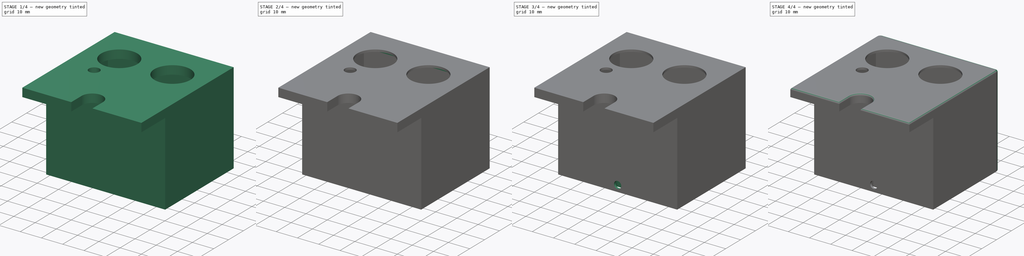
[diagram: build sequence overview — one tinted view per stage of 4, left to right]
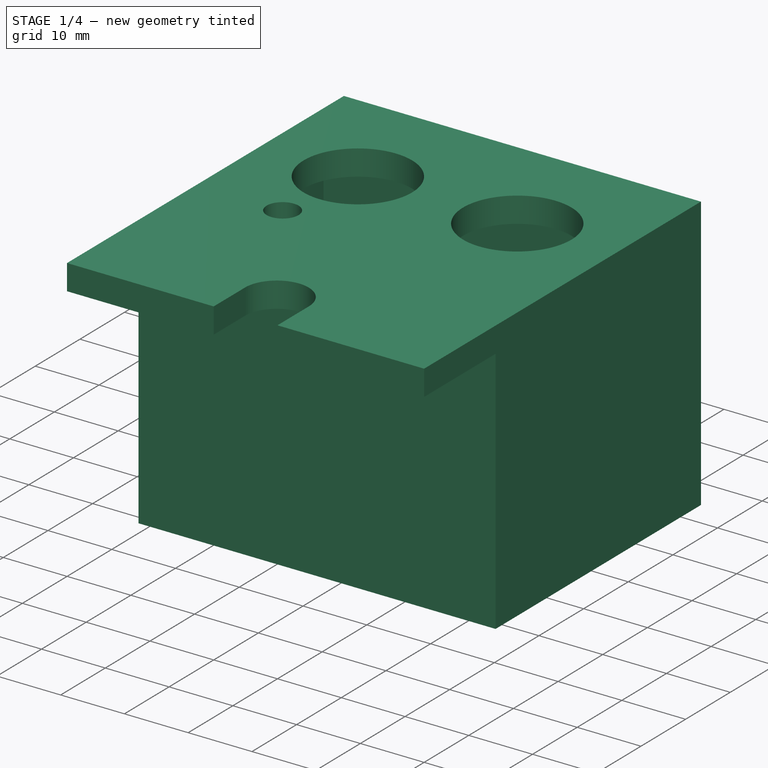
[diagram: stage 1 of 4 — iso view after this stage's code; geometry added in this stage tinted green]
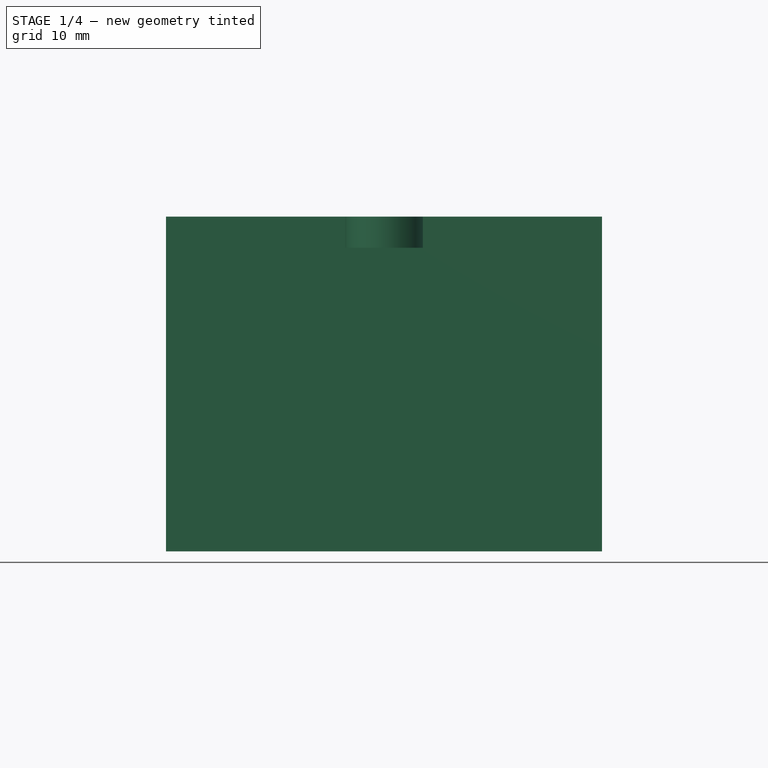
[diagram: stage 1 of 4 — front view after this stage's code; geometry added in this stage tinted green]
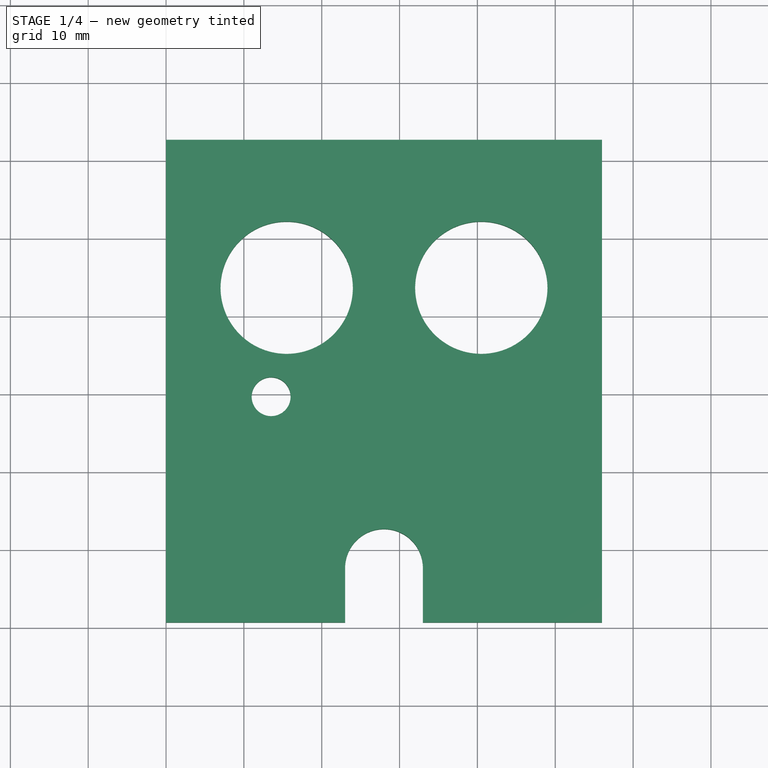
[diagram: stage 1 of 4 — top view after this stage's code; geometry added in this stage tinted green]
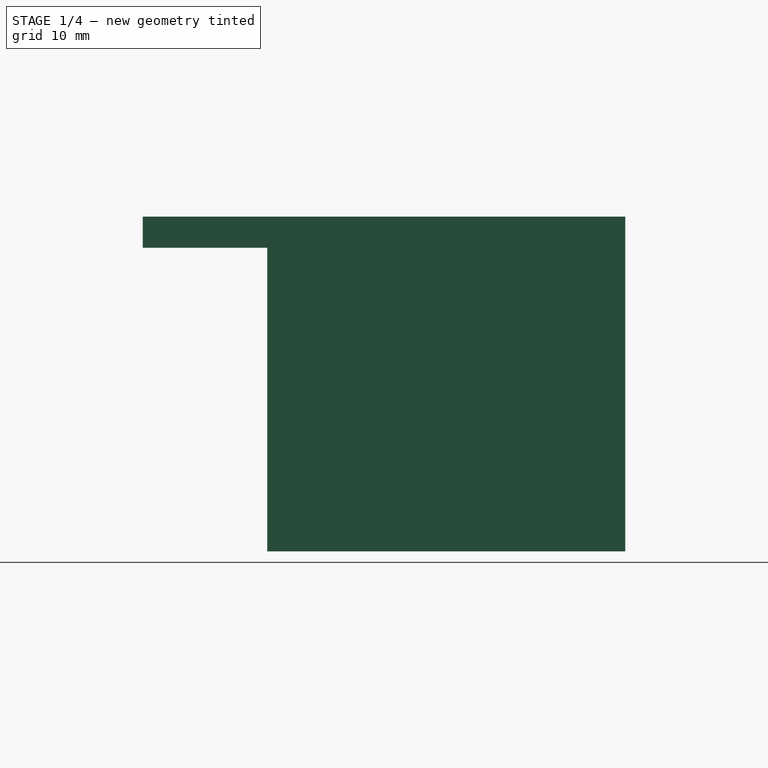
[diagram: stage 1 of 4 — right view after this stage's code; geometry added in this stage tinted green]
FCSTD DOCUMENT  (FreeCAD 0.17R13541 (Git))
Label: Head
License: All rights reserved
LicenseURL: http://en.wikipedia.org/wiki/All_rights_reserved
objects: Sketcher::SketchObject×7, PartDesign::Pocket×6, PartDesign::Fillet×2, PartDesign::Pad×1, PartDesign::Body×1
note: 24 computed .brp shape members not serialized (recipe doc carries the construction recipe); baked Part::Feature solids carry a one-line shape summary decoded from their .brp

FEATURE [Sketcher::SketchObject] Sketch
  MapMode = 5
  Support = -> [XY_Plane]
  sketch-geometry (11):
    g0: LineSegment StartX=56 StartY=0 StartZ=0 EndX=56 EndY=62 EndZ=0
    g1: LineSegment StartX=56 StartY=62 StartZ=0 EndX=0 EndY=62 EndZ=0
    g2: LineSegment StartX=0 StartY=62 StartZ=0 EndX=0 EndY=0 EndZ=0
    g3: LineSegment StartX=23 StartY=0 StartZ=0 EndX=23 EndY=7 EndZ=0
    g4: LineSegment StartX=33 StartY=0 StartZ=0 EndX=33 EndY=7 EndZ=0
    g5: ArcOfCircle CenterX=28 CenterY=7 CenterZ=0 NormalX=0 NormalY=0 NormalZ=1 AngleXU=0 Radius=5 StartAngle=0 EndAngle=3.14159
    g6: LineSegment StartX=0 StartY=0 StartZ=0 EndX=23 EndY=0 EndZ=0
    g7: LineSegment StartX=33 StartY=0 StartZ=0 EndX=56 EndY=0 EndZ=0
    g8: Circle CenterX=15.5 CenterY=43 CenterZ=0 NormalX=0 NormalY=0 NormalZ=1 AngleXU=0 Radius=8.5
    g9: Circle CenterX=40.5 CenterY=43 CenterZ=0 NormalX=0 NormalY=0 NormalZ=1 AngleXU=0 Radius=8.5
    g10: Circle CenterX=13.5 CenterY=29 CenterZ=0 NormalX=0 NormalY=0 NormalZ=1 AngleXU=0 Radius=2.5
  constraints (33):
    c: Coincident(g0,g1)
    c: Coincident(g1,g2)
    c: Horizontal(g1)
    c: Vertical(g0)
    c: Vertical(g2)
    c: DistanceY(g0,g0) = 62
    c: DistanceX(g1,g1) = 56
    c: Vertical(g3)
    c: Vertical(g4)
    c: Coincident(g5,g3)
    c: Coincident(g5,g4)
    c: Coincident(g6,g-1)
    c: Coincident(g6,g3)
    c: Horizontal(g6)
    c: Coincident(g7,g4)
    c: Coincident(g7,g0)
    c: Horizontal(g7)
    c: Radius(g5) = 5
    c: DistanceY(g5,g3) = 0
    c: DistanceY(g5,g4) = 0
    c: DistanceY(g4,g4) = 7
    c: DistanceX(g6,g6) = 23
    c: PointOnObject(g4,g-1)
    c: Coincident(g-1,g2)
    c: Radius(g8) = 8.5
    c: Radius(g9) = 8.5
    c: DistanceX(g-1,g8) = 15.5
    c: DistanceX(g8,g9) = 25
    c: DistanceY(g8,g9) = 0
    c: DistanceY(g-1,g8) = 43
    c: Radius(g10) = 2.5
    c: DistanceX(g10,g8) = 2
    c: DistanceY(g10,g8) = 14
FEATURE [PartDesign::Pad] Pad  label="Base"
  Length = 43
  Length2 = 100
  Profile = -> Sketch
  Type = 0
FEATURE [Sketcher::SketchObject] Sketch002
  MapMode = 5
  Placement = pos=(0,0,0) rot=(0.57735,-0.57735,-0.57735;2.0944rad)
  sketch-geometry (4):
    g0: LineSegment StartX=-44 StartY=24 StartZ=0 EndX=-36 EndY=24 EndZ=0
    g1: LineSegment StartX=-36 StartY=24 StartZ=0 EndX=-36 EndY=12 EndZ=0
    g2: LineSegment StartX=-36 StartY=12 StartZ=0 EndX=-44 EndY=12 EndZ=0
    g3: LineSegment StartX=-44 StartY=12 StartZ=0 EndX=-44 EndY=24 EndZ=0
  constraints (12):
    c: Coincident(g0,g1)
    c: Coincident(g1,g2)
    c: Coincident(g2,g3)
    c: Coincident(g3,g0)
    c: Horizontal(g0)
    c: Horizontal(g2)
    c: Vertical(g1)
    c: Vertical(g3)
    c: DistanceX(g1,g-1) = 36
    c: DistanceY(g-1,g1) = 12
    c: DistanceY(g1,g1) = 12
    c: DistanceX(g0,g0) = 8
FEATURE [Sketcher::SketchObject] Sketch004
  MapMode = 5
  Placement = pos=(0,0,0) rot=(1,0,0;3.14159rad)
  Support = -> [Pad]
  sketch-geometry (8):
    g0: LineSegment StartX=0 StartY=0 StartZ=0 EndX=56 EndY=0 EndZ=0
    g1: LineSegment StartX=56 StartY=0 StartZ=0 EndX=56 EndY=-16 EndZ=0
    g2: LineSegment StartX=56 StartY=-16 StartZ=0 EndX=0 EndY=-16 EndZ=0
    g3: LineSegment StartX=0 StartY=-16 StartZ=0 EndX=0 EndY=0 EndZ=0
    g4: LineSegment StartX=1 StartY=-21 StartZ=0 EndX=55 EndY=-21 EndZ=0
    g5: LineSegment StartX=55 StartY=-21 StartZ=0 EndX=55 EndY=-56 EndZ=0
    g6: LineSegment StartX=55 StartY=-56 StartZ=0 EndX=1 EndY=-56 EndZ=0
    g7: LineSegment StartX=1 StartY=-56 StartZ=0 EndX=1 EndY=-21 EndZ=0
  constraints (24):
    c: Coincident(g0,g1)
    c: Coincident(g1,g2)
    c: Coincident(g2,g3)
    c: Coincident(g3,g0)
    c: Horizontal(g0)
    c: Horizontal(g2)
    c: Vertical(g1)
    c: Vertical(g3)
    c: PointOnObject(g0,g-1)
    c: Coincident(g0,g-1)
    c: DistanceX(g0,g0) = 56
    c: DistanceY(g1,g1) = 16
    c: Coincident(g4,g5)
    c: Coincident(g5,g6)
    c: Coincident(g6,g7)
    c: Coincident(g7,g4)
    c: Horizontal(g4)
    c: Horizontal(g6)
    c: Vertical(g5)
    c: Vertical(g7)
    c: DistanceY(g4,g2) = 5
    c: DistanceX(g2,g4) = 1
    c: DistanceX(g6,g6) = 54
    c: DistanceY(g5,g5) = 35
FEATURE [PartDesign::Pocket] Pocket  label="General"
  BaseFeature = -> Pad
  Length = 39
  Length2 = 100
  Profile = -> Sketch004
  Type = 0
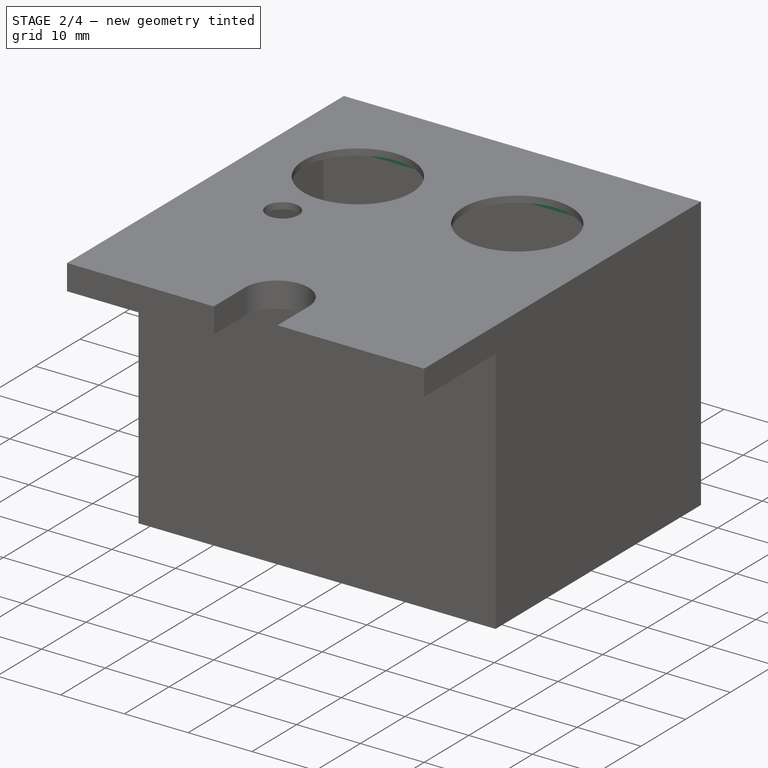
[diagram: stage 2 of 4 — iso view after this stage's code; geometry added in this stage tinted green]
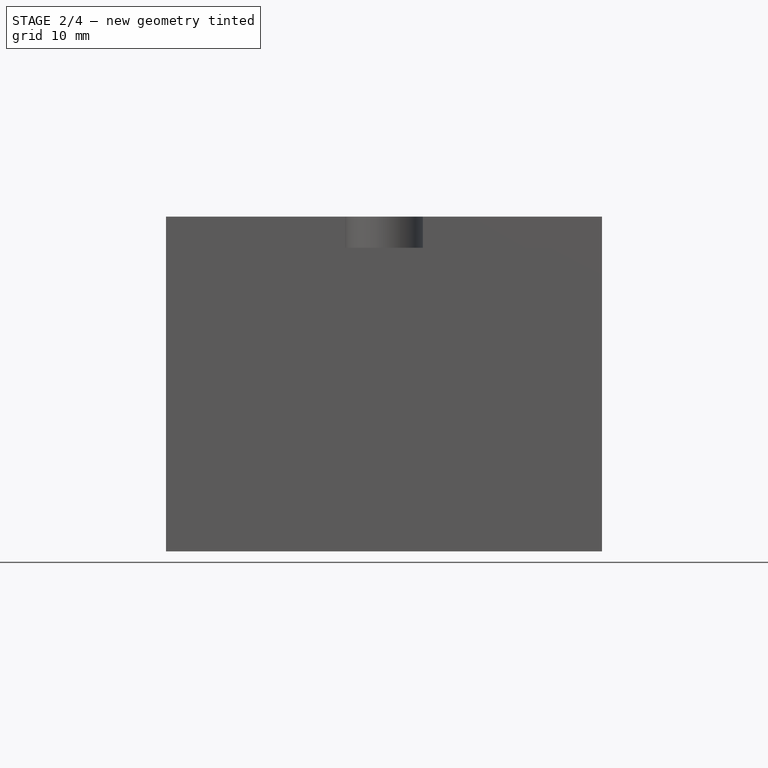
[diagram: stage 2 of 4 — front view after this stage's code; geometry added in this stage tinted green]
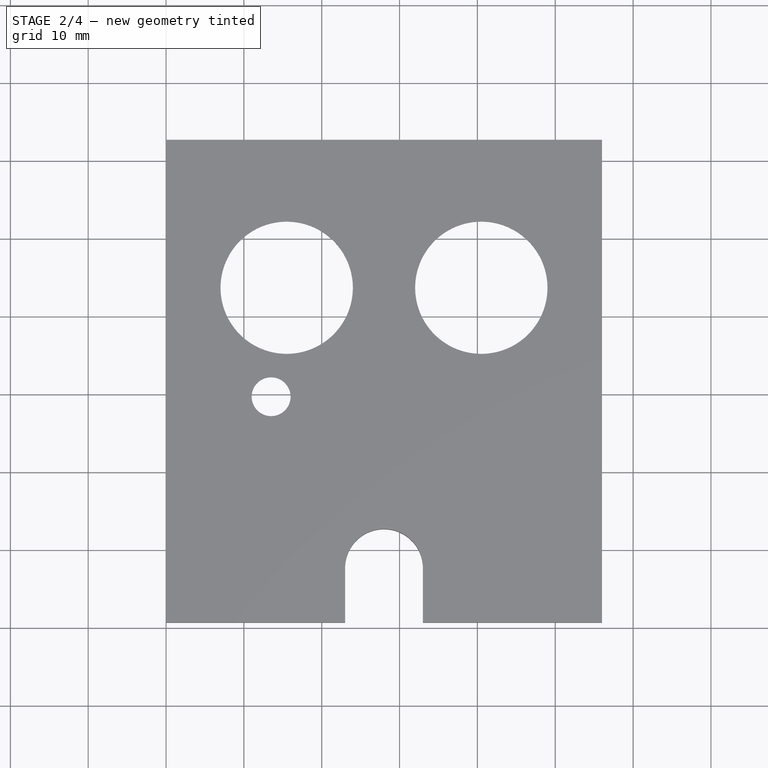
[diagram: stage 2 of 4 — top view after this stage's code; geometry added in this stage tinted green]
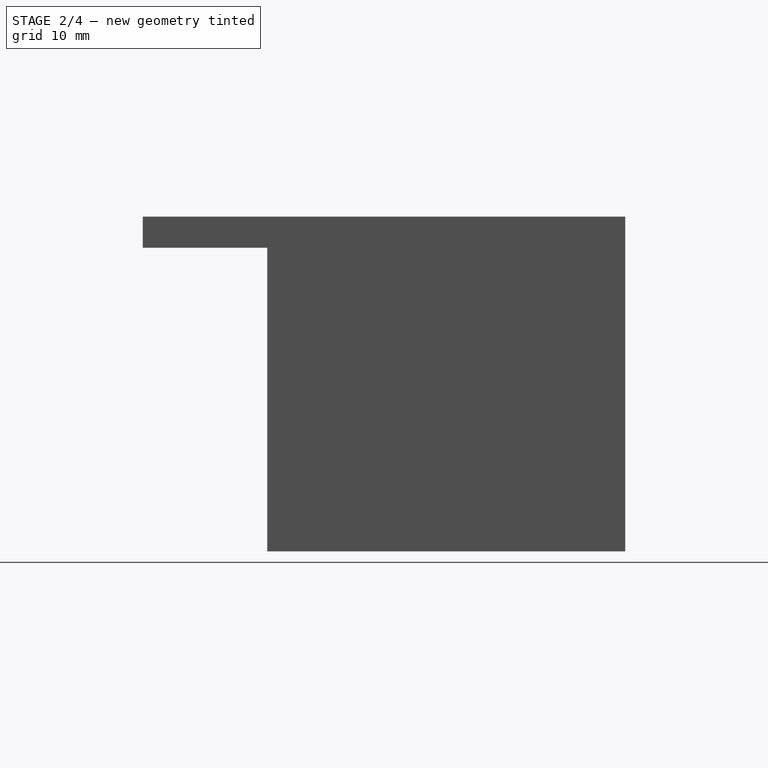
[diagram: stage 2 of 4 — right view after this stage's code; geometry added in this stage tinted green]
FEATURE [Sketcher::SketchObject] Sketch006
  MapMode = 5
  Placement = pos=(0,0,39) rot=(1,0,0;3.14159rad)
  Support = -> [Pocket]
  sketch-geometry (4):
    g0: LineSegment StartX=1 StartY=-25 StartZ=0 EndX=55 EndY=-25 EndZ=0
    g1: LineSegment StartX=55 StartY=-25 StartZ=0 EndX=55 EndY=-56 EndZ=0
    g2: LineSegment StartX=55 StartY=-56 StartZ=0 EndX=1 EndY=-56 EndZ=0
    g3: LineSegment StartX=1 StartY=-56 StartZ=0 EndX=1 EndY=-25 EndZ=0
  constraints (12):
    c: Coincident(g0,g1)
    c: Coincident(g1,g2)
    c: Coincident(g2,g3)
    c: Coincident(g3,g0)
    c: Horizontal(g0)
    c: Horizontal(g2)
    c: Vertical(g1)
    c: Vertical(g3)
    c: DistanceX(g2,g2) = 54
    c: DistanceY(g0,g-1) = 25
    c: DistanceX(g-1,g0) = 1
    c: DistanceY(g1,g1) = 31
FEATURE [PartDesign::Pocket] Pocket004  label="Especifico"
  BaseFeature = -> Pocket
  Length = 3
  Length2 = 100
  Profile = -> Sketch006
  Type = 0
FEATURE [PartDesign::Pocket] Pocket001  label="USB"
  BaseFeature = -> Pocket004
  Length = 5
  Length2 = 100
  Profile = -> Sketch002
  Type = 2
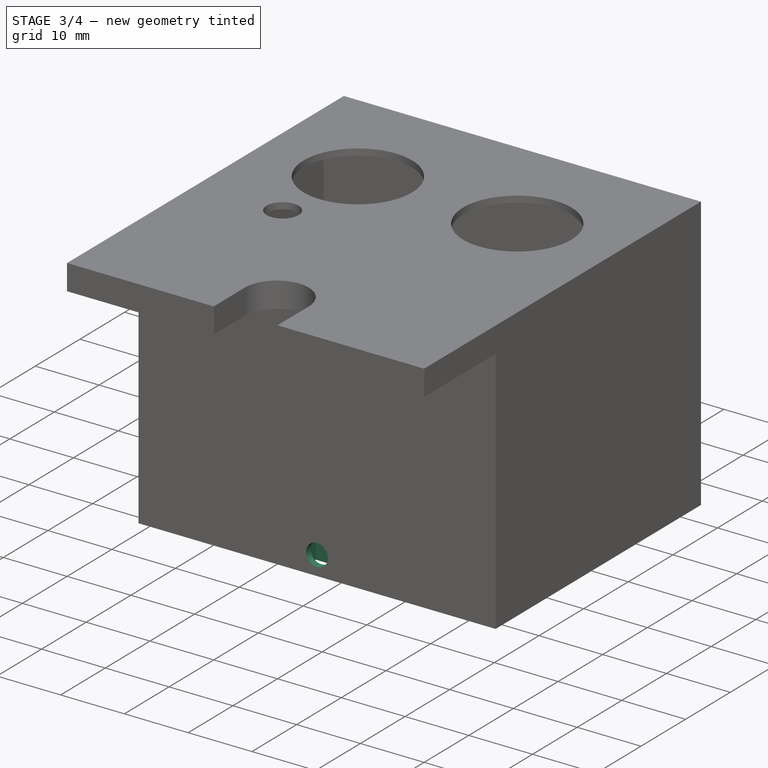
[diagram: stage 3 of 4 — iso view after this stage's code; geometry added in this stage tinted green]
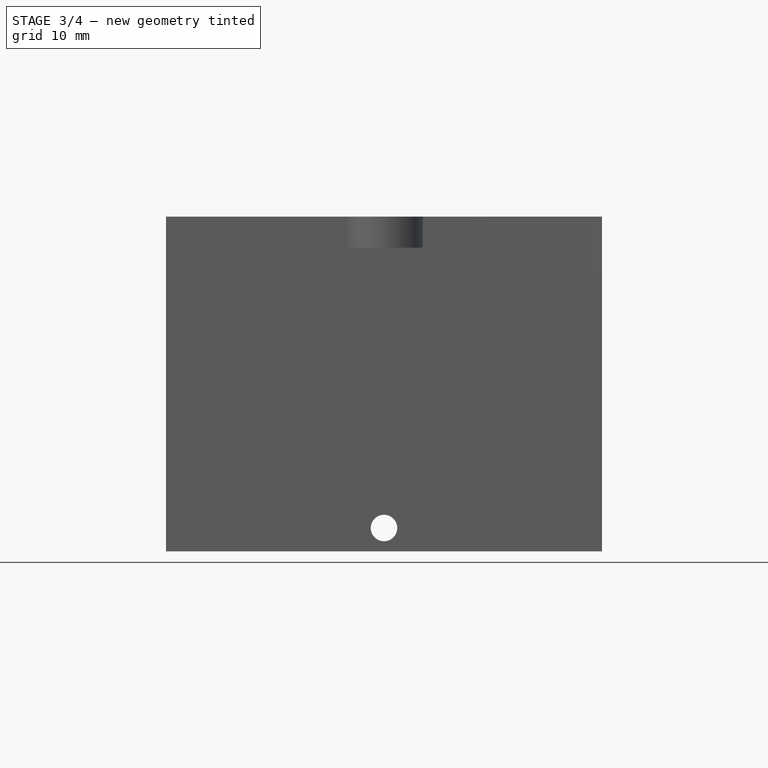
[diagram: stage 3 of 4 — front view after this stage's code; geometry added in this stage tinted green]
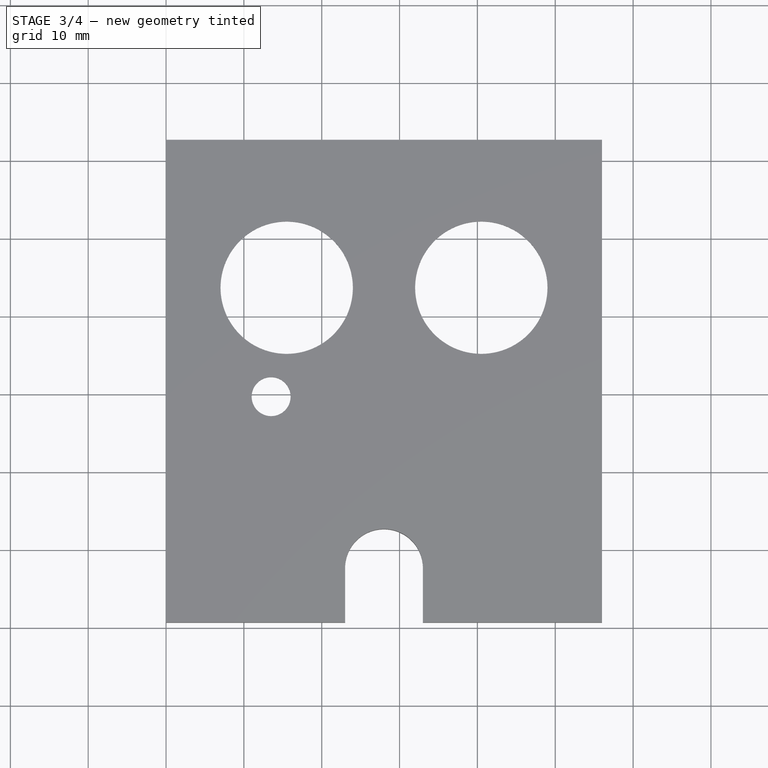
[diagram: stage 3 of 4 — top view after this stage's code; geometry added in this stage tinted green]
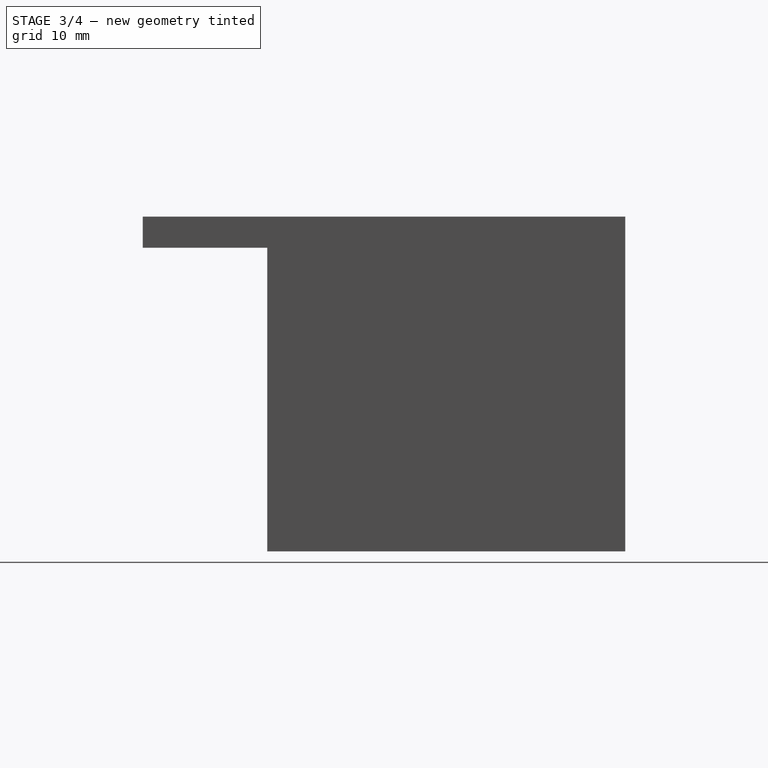
[diagram: stage 3 of 4 — right view after this stage's code; geometry added in this stage tinted green]
FEATURE [Sketcher::SketchObject] Sketch003
  MapMode = 5
  Placement = pos=(0,62,0) rot=(0,0.707107,0.707107;3.14159rad)
  Support = -> [Pocket001]
  sketch-geometry (1):
    g0: Circle CenterX=-28 CenterY=3 CenterZ=0 NormalX=0 NormalY=0 NormalZ=1 AngleXU=0 Radius=1.7
  constraints (3):
    c: Radius(g0) = 1.7
    c: DistanceX(g0,g-1) = 28
    c: DistanceY(g-1,g0) = 3
FEATURE [PartDesign::Pocket] Pocket002  label="Tornillos"
  BaseFeature = -> Pocket001
  Length = 5
  Length2 = 100
  Profile = -> Sketch003
  Type = 1
FEATURE [Sketcher::SketchObject] Sketch005
  MapMode = 5
  Placement = pos=(0,0,0) rot=(1,0,0;3.14159rad)
  Support = -> [Pocket002]
  sketch-geometry (4):
    g0: LineSegment StartX=25 StartY=-17 StartZ=0 EndX=31 EndY=-17 EndZ=0
    g1: LineSegment StartX=31 StartY=-17 StartZ=0 EndX=31 EndY=-20 EndZ=0
    g2: LineSegment StartX=31 StartY=-20 StartZ=0 EndX=25 EndY=-20 EndZ=0
    g3: LineSegment StartX=25 StartY=-20 StartZ=0 EndX=25 EndY=-17 EndZ=0
  constraints (12):
    c: Coincident(g0,g1)
    c: Coincident(g1,g2)
    c: Coincident(g2,g3)
    c: Coincident(g3,g0)
    c: Horizontal(g0)
    c: Horizontal(g2)
    c: Vertical(g1)
    c: Vertical(g3)
    c: DistanceY(g1,g1) = 3
    c: DistanceX(g2,g2) = 6
    c: DistanceY(g0,g-1) = 17
    c: DistanceX(g-1,g2) = 25
FEATURE [Sketcher::SketchObject] Sketch007
  MapMode = 5
  Placement = pos=(0,62,0) rot=(0,0.707107,0.707107;3.14159rad)
  Support = -> [Pocket002]
  sketch-geometry (1):
    g0: Circle CenterX=-28 CenterY=3 CenterZ=0 NormalX=0 NormalY=0 NormalZ=1 AngleXU=0 Radius=2.5
  constraints (3):
    c: DistanceY(g-1,g0) = 3
    c: DistanceX(g0,g-1) = 28
    c: Radius(g0) = 2.5
FEATURE [PartDesign::Pocket] Pocket005  label="Cabeza_tornillos"
  BaseFeature = -> Pocket002
  Length = 3
  Length2 = 100
  Profile = -> Sketch007
  Type = 0
FEATURE [PartDesign::Pocket] Pocket003  label="Pocket_tuercas"
  BaseFeature = -> Pocket005
  Length = 6
  Length2 = 100
  Profile = -> Sketch005
  Type = 0
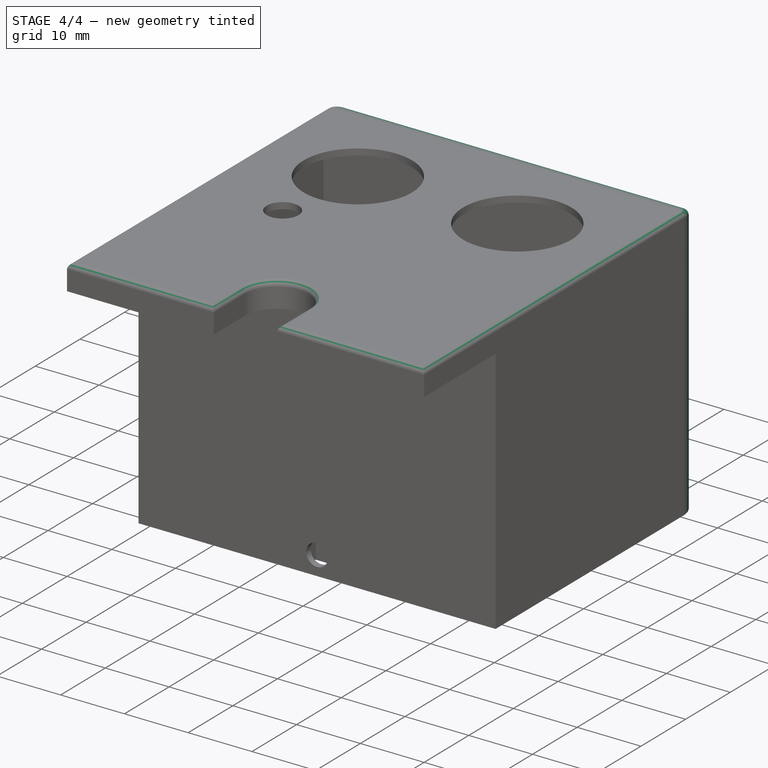
[diagram: stage 4 of 4 — iso view after this stage's code; geometry added in this stage tinted green]
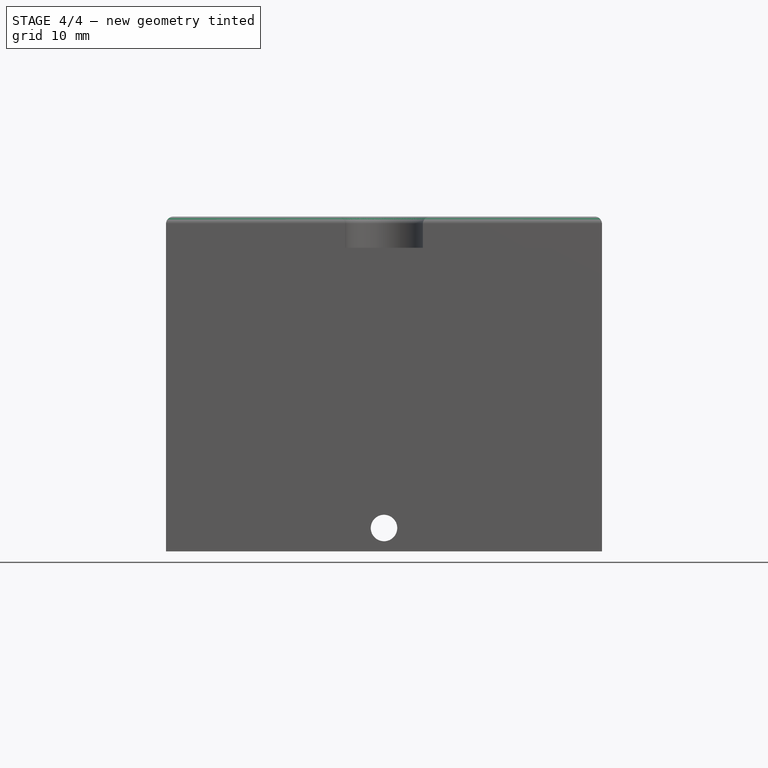
[diagram: stage 4 of 4 — front view after this stage's code; geometry added in this stage tinted green]
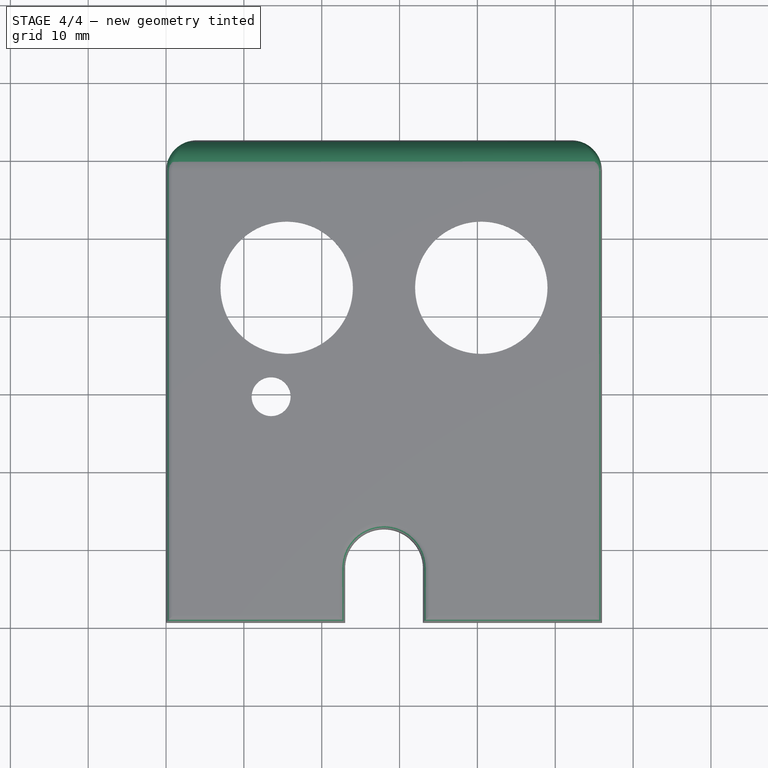
[diagram: stage 4 of 4 — top view after this stage's code; geometry added in this stage tinted green]
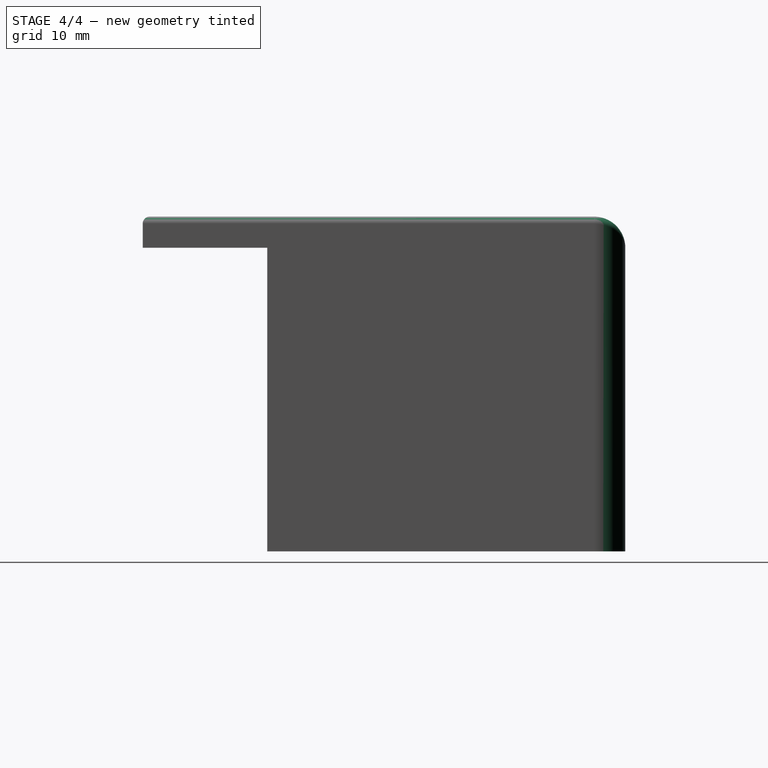
[diagram: stage 4 of 4 — right view after this stage's code; geometry added in this stage tinted green]
FEATURE [PartDesign::Fillet] Fillet
  Base = -> Pocket003 [Edge15,Edge27,Edge16]
  BaseFeature = -> Pocket003
  Radius = 4
FEATURE [PartDesign::Fillet] Fillet001
  Base = -> Fillet [Edge9,Edge1,Edge8,Edge11,Edge13,Edge12,Edge10]
  BaseFeature = -> Fillet
  Radius = 0.9
FEATURE [PartDesign::Body] Body
  Group = -> [Sketch,Pad,Sketch002,Sketch004,Pocket,Sketch005,Sketch006,Pocket004,Sketch007,Pocket001,Pocket002,Pocket005,Pocket003,Fillet,Fillet001,Sketch003]
  Origin = -> Origin
  Tip = -> Pocket004
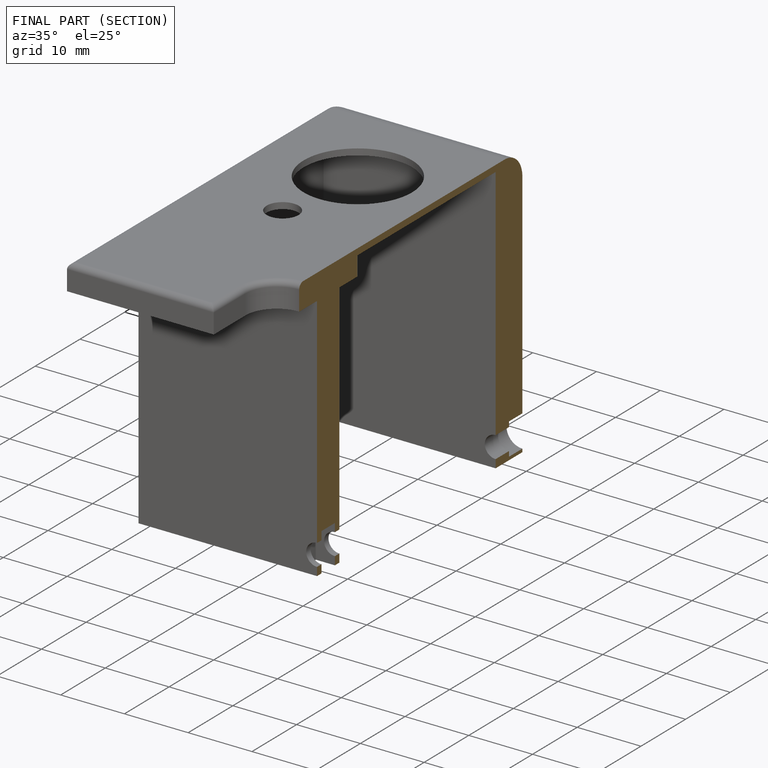
[diagram: finished part — half-section view (interior)]
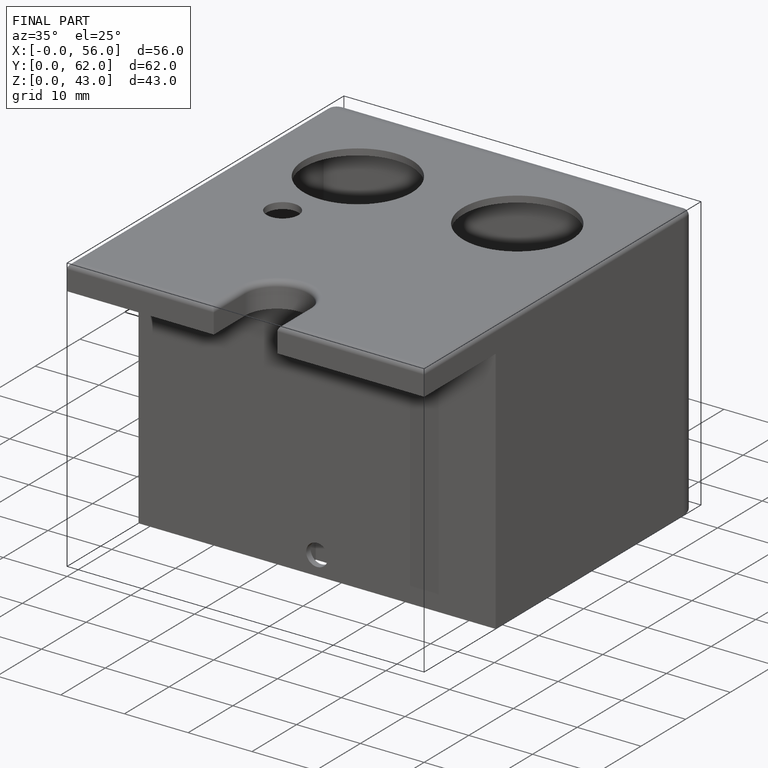
[diagram: finished part — iso view with bounding-box wireframe]
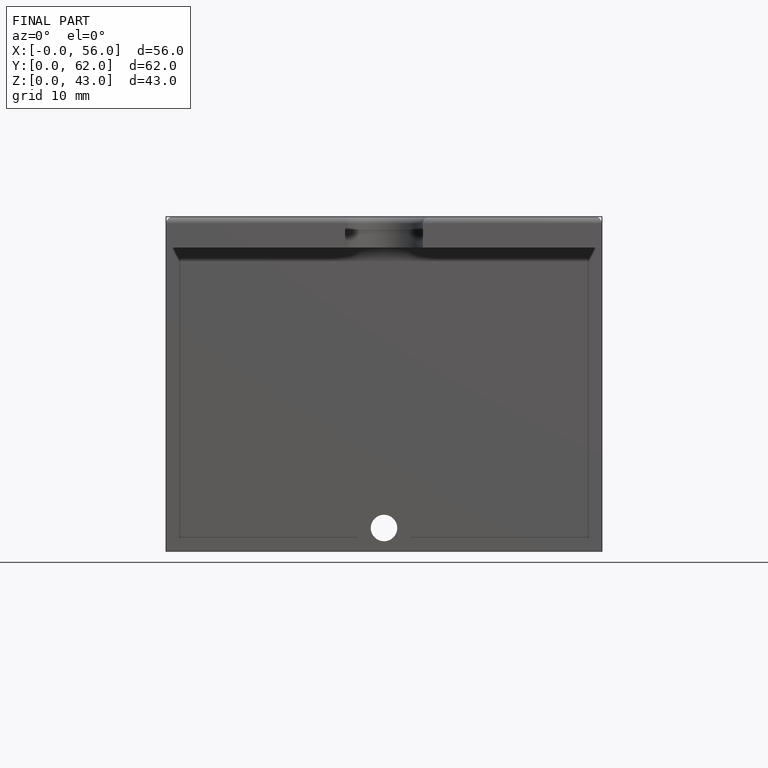
[diagram: finished part — front view with bounding-box wireframe]
